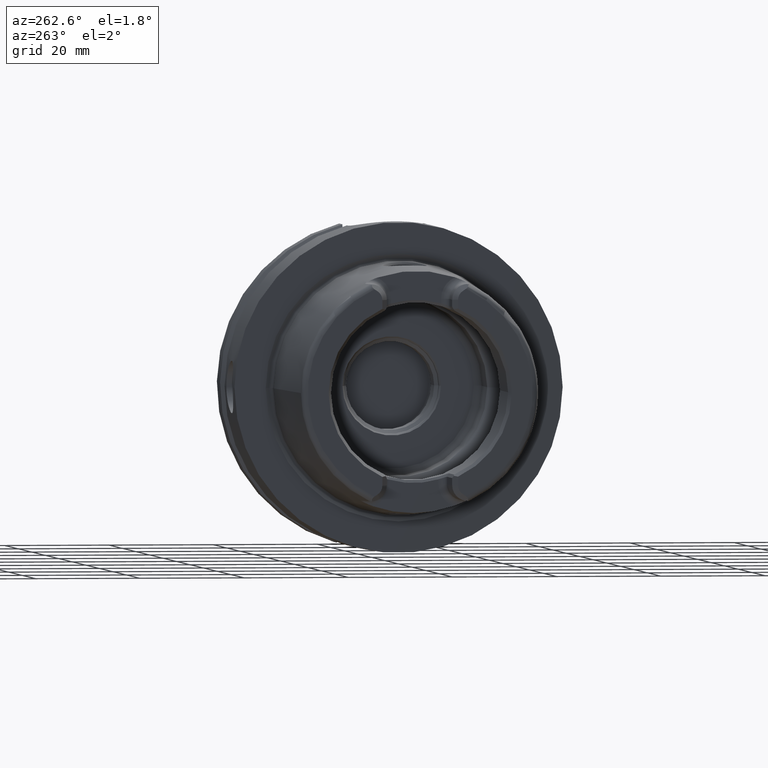
[diagram: clean part render]
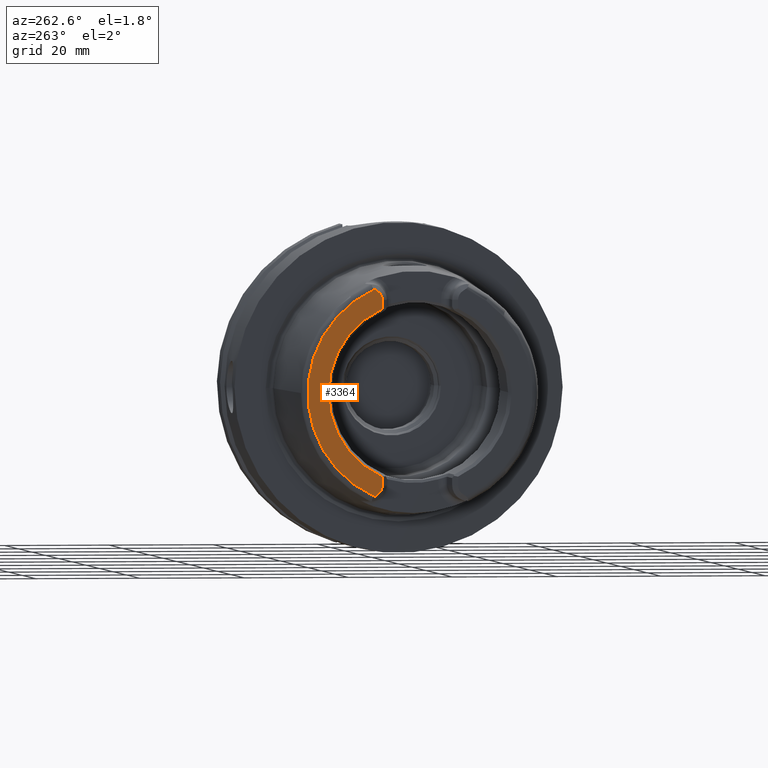
[diagram: same view with one face highlighted and labeled with its STEP entity id]
A machine part, auxiliary view. The second image highlights one B-rep face of the part: STEP entity #3364.
In plain terms, the highlighted planar face has unit normal (1, 0, 0).
Its self-contained STEP definition (entity closure, byte-faithful):
#215=CARTESIAN_POINT('',(-3.2E1,0.E0,0.E0));
#216=DIRECTION('',(-1.E0,0.E0,0.E0));
#217=DIRECTION('',(0.E0,4.056746540583E-1,9.140175463604E-1));
#218=AXIS2_PLACEMENT_3D('',#215,#216,#217);
#289=DIRECTION('',(0.E0,0.E0,1.E0));
#290=VECTOR('',#289,1.666552168805E0);
#291=CARTESIAN_POINT('',(-3.2E1,7.27E0,-1.767E1));
#292=LINE('',#291,#290);
#293=CARTESIAN_POINT('',(-3.2E1,9.27E0,-1.767E1));
#294=DIRECTION('',(1.E0,0.E0,0.E0));
#295=DIRECTION('',(0.E0,-1.E0,0.E0));
#296=AXIS2_PLACEMENT_3D('',#293,#294,#295);
#298=DIRECTION('',(0.E0,-8.373245684230E-1,5.467061067112E-1));
#299=VECTOR('',#298,6.882400885956E-1);
#300=CARTESIAN_POINT('',(-3.2E1,8.752868121732E0,-1.972091419616E1));
#301=LINE('',#300,#299);
#302=DIRECTION('',(0.E0,-8.373245684230E-1,-5.467061067112E-1));
#303=VECTOR('',#302,6.882400885957E-1);
#304=CARTESIAN_POINT('',(-3.2E1,8.752868121732E0,1.972091419616E1));
#305=LINE('',#304,#303);
#306=CARTESIAN_POINT('',(-3.2E1,9.27E0,1.767E1));
#307=DIRECTION('',(-1.E0,0.E0,0.E0));
#308=DIRECTION('',(0.E0,-1.E0,0.E0));
#309=AXIS2_PLACEMENT_3D('',#306,#307,#308);
#311=DIRECTION('',(0.E0,0.E0,1.E0));
#312=VECTOR('',#311,1.666552168805E0);
#313=CARTESIAN_POINT('',(-3.2E1,7.27E0,1.600344783120E1));
#314=LINE('',#313,#312);
#346=CARTESIAN_POINT('',(-3.2E1,0.E0,0.E0));
#347=DIRECTION('',(1.E0,0.E0,0.E0));
#348=DIRECTION('',(0.E0,4.136004510727E-1,-9.104584926686E-1));
#349=AXIS2_PLACEMENT_3D('',#346,#347,#348);
#2759=CARTESIAN_POINT('',(-3.2E1,7.27E0,1.600344783120E1));
#2760=CARTESIAN_POINT('',(-3.2E1,7.27E0,1.767E1));
#2761=VERTEX_POINT('',#2759);
#2762=VERTEX_POINT('',#2760);
#2763=CARTESIAN_POINT('',(-3.2E1,8.176587786578E0,1.934464913685E1));
#2764=VERTEX_POINT('',#2763);
#2765=CARTESIAN_POINT('',(-3.2E1,8.752868121732E0,1.972091419616E1));
#2766=VERTEX_POINT('',#2765);
#2855=CARTESIAN_POINT('',(-3.2E1,7.27E0,-1.767E1));
#2856=CARTESIAN_POINT('',(-3.2E1,7.27E0,-1.600344783120E1));
#2857=VERTEX_POINT('',#2855);
#2858=VERTEX_POINT('',#2856);
#2859=CARTESIAN_POINT('',(-3.2E1,8.176587786578E0,-1.934464913685E1));
#2860=VERTEX_POINT('',#2859);
#2861=CARTESIAN_POINT('',(-3.2E1,8.752868121732E0,-1.972091419616E1));
#2862=VERTEX_POINT('',#2861);
#3343=CARTESIAN_POINT('',(-3.2E1,0.E0,0.E0));
#3344=DIRECTION('',(1.E0,0.E0,0.E0));
#3345=DIRECTION('',(0.E0,-1.E0,0.E0));
#3346=AXIS2_PLACEMENT_3D('',#3343,#3344,#3345);
#3347=PLANE('',#3346);
#3349=ORIENTED_EDGE('',*,*,#3348,.F.);
#3351=ORIENTED_EDGE('',*,*,#3350,.T.);
#3352=ORIENTED_EDGE('',*,*,#3333,.F.);
#3353=ORIENTED_EDGE('',*,*,#3300,.F.);
#3355=ORIENTED_EDGE('',*,*,#3354,.T.);
#3357=ORIENTED_EDGE('',*,*,#3356,.F.);
#3359=ORIENTED_EDGE('',*,*,#3358,.F.);
#3361=ORIENTED_EDGE('',*,*,#3360,.F.);
#3362=EDGE_LOOP('',(#3349,#3351,#3352,#3353,#3355,#3357,#3359,#3361));
#3363=FACE_OUTER_BOUND('',#3362,.F.);
#3364=ADVANCED_FACE('',(#3363),#3347,.F.);
#219=CIRCLE('',#218,2.157607835286E1);
#297=CIRCLE('',#296,2.E0);
#310=CIRCLE('',#309,2.E0);
#350=CIRCLE('',#349,1.757735026919E1);
#3300=EDGE_CURVE('',#2766,#2862,#219,.T.);
#3333=EDGE_CURVE('',#2862,#2860,#301,.T.);
#3348=EDGE_CURVE('',#2857,#2858,#292,.T.);
#3350=EDGE_CURVE('',#2857,#2860,#297,.T.);
#3354=EDGE_CURVE('',#2766,#2764,#305,.T.);
#3356=EDGE_CURVE('',#2762,#2764,#310,.T.);
#3358=EDGE_CURVE('',#2761,#2762,#314,.T.);
#3360=EDGE_CURVE('',#2858,#2761,#350,.T.);